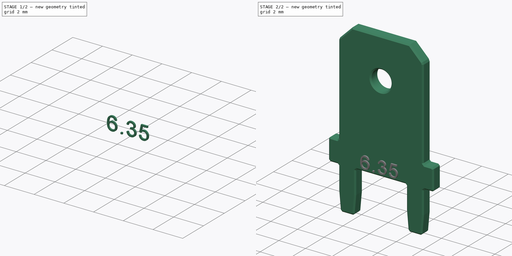
[diagram: build sequence overview — one tinted view per stage of 2, left to right]
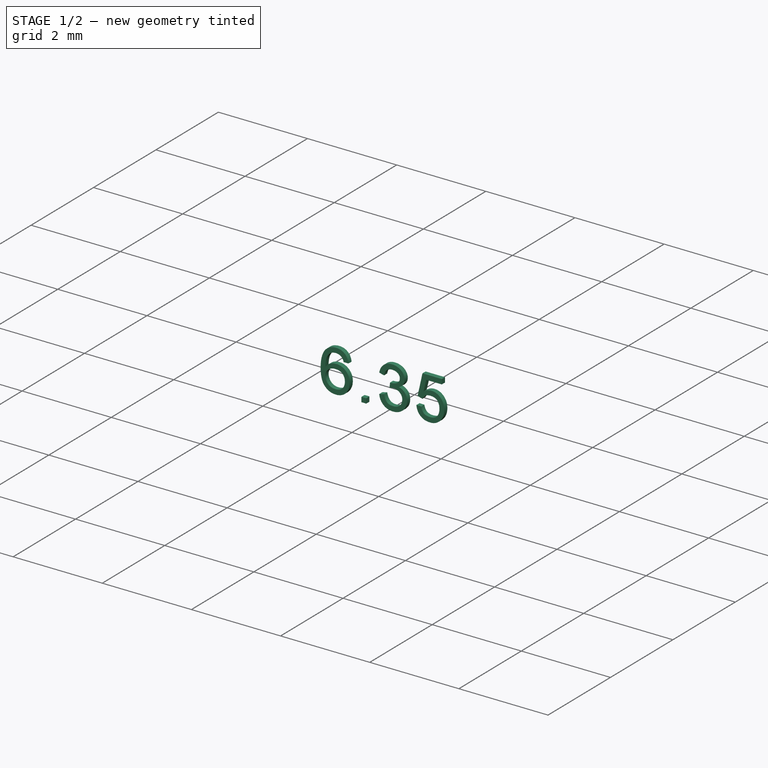
[diagram: stage 1 of 2 — iso view after this stage's code; geometry added in this stage tinted green]
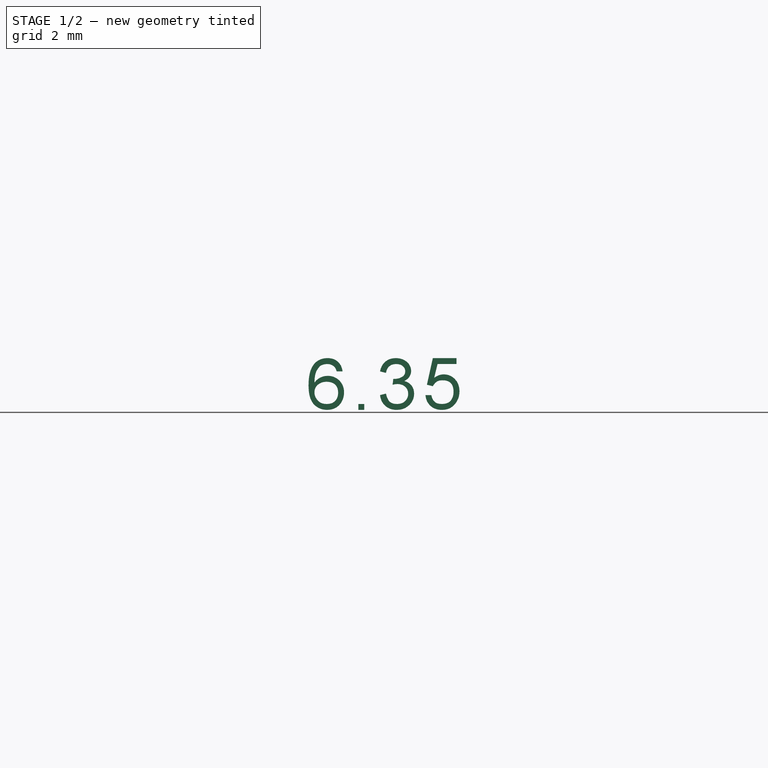
[diagram: stage 1 of 2 — front view after this stage's code; geometry added in this stage tinted green]
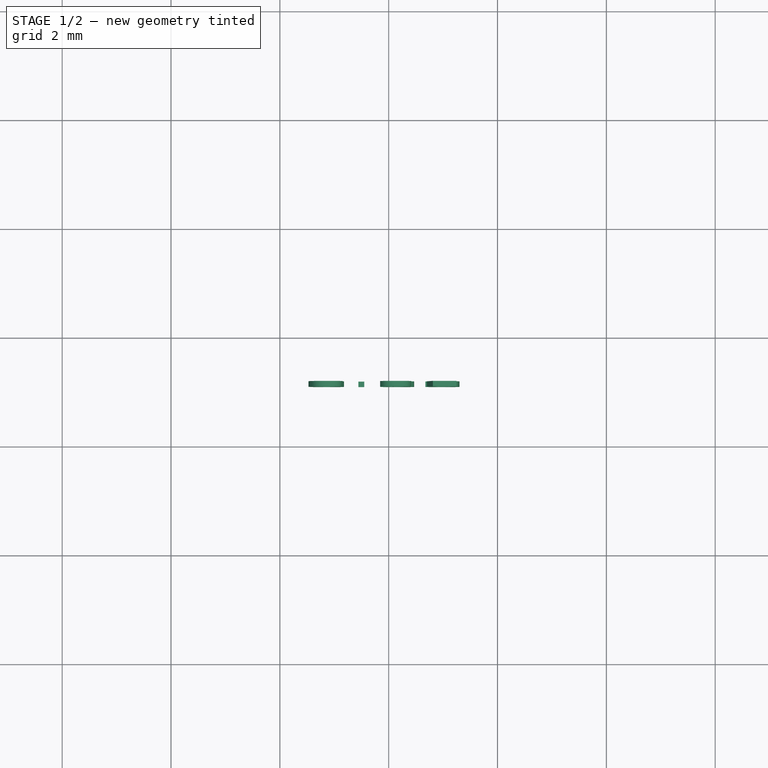
[diagram: stage 1 of 2 — top view after this stage's code; geometry added in this stage tinted green]
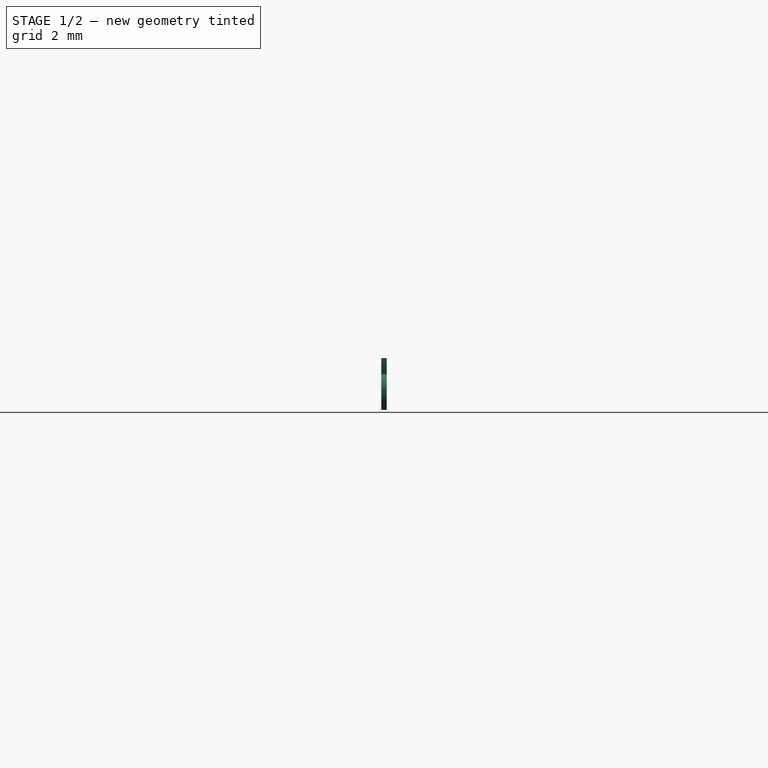
[diagram: stage 1 of 2 — right view after this stage's code; geometry added in this stage tinted green]
FCSTD DOCUMENT  (FreeCAD 0.20R29177 (Git))
Label: Faston6.35
License: All rights reserved
LicenseURL: http://en.wikipedia.org/wiki/All_rights_reserved
objects: PartDesign::Body×1, Sketcher::SketchObject×1, PartDesign::Pad×1, Part::Part2DObjectPython×1, PartDesign::Chamfer×1, Part::Extrusion×1, App::Part×1
note: 8 computed .brp shape members not serialized (recipe doc carries the construction recipe); baked Part::Feature solids carry a one-line shape summary decoded from their .brp

FEATURE [PartDesign::Body] Body  label="Faston"
  Origin = -> Origin
FEATURE [Sketcher::SketchObject] Sketch
  FullyConstrained = true
  MapMode = 5
  Placement = pos=(0,0,0) rot=(1,0,0;1.5708rad)
  Support = -> [XZ_Plane]
  sketch-geometry (39):
    g0: LineSegment StartX=-3.175 StartY=1.75957 StartZ=0 EndX=-3.28107 EndY=1.65351 EndZ=0
    g1: LineSegment StartX=-3.83107 StartY=1.65351 StartZ=0 EndX=-3.93713 EndY=1.54744 EndZ=0
    g2: LineSegment StartX=-3.93713 StartY=1.54744 StartZ=0 EndX=-3.93713 EndY=0.106066 EndZ=0
    g3: LineSegment StartX=-3.93713 StartY=0.106066 StartZ=0 EndX=-3.83107 EndY=0 EndZ=0
    g4: LineSegment StartX=-3.83107 StartY=0 StartZ=0 EndX=-3.28107 EndY=0 EndZ=0
    g5: LineSegment StartX=-3.28107 StartY=0 StartZ=0 EndX=-3.175 EndY=-0.106066 EndZ=0
    g6: LineSegment StartX=-3.175 StartY=-0.106066 StartZ=0 EndX=-3.175 EndY=-1.77607 EndZ=0
    g7: LineSegment StartX=-3.175 StartY=-1.77607 StartZ=0 EndX=-3.0566 EndY=-3.07066 EndZ=0
    g8: LineSegment StartX=-3.0566 StartY=-3.07066 StartZ=0 EndX=-2.95053 EndY=-3.17673 EndZ=0
    g9: LineSegment StartX=-2.95053 StartY=-3.17673 StartZ=0 EndX=-2.13053 EndY=-3.17673 EndZ=0
    g10: LineSegment StartX=-2.13053 StartY=-3.17673 StartZ=0 EndX=-2.02447 EndY=-3.07066 EndZ=0
    g11: LineSegment StartX=-2.02447 StartY=-3.07066 StartZ=0 EndX=-1.90607 EndY=-1.77607 EndZ=0
    g12: LineSegment StartX=-1.90607 StartY=-1.77607 StartZ=0 EndX=-1.90607 EndY=-0.106066 EndZ=0
    g13: LineSegment StartX=-1.90607 StartY=-0.106066 StartZ=0 EndX=-1.8 EndY=0 EndZ=0
    g14: LineSegment StartX=-1.8 StartY=0 StartZ=0 EndX=1.8 EndY=0 EndZ=0
    g15: LineSegment StartX=1.8 StartY=0 StartZ=0 EndX=1.90607 EndY=-0.106066 EndZ=0
    g16: LineSegment StartX=1.90607 StartY=-0.106066 StartZ=0 EndX=1.90607 EndY=-1.77607 EndZ=0
    g17: LineSegment StartX=1.90607 StartY=-1.77607 StartZ=0 EndX=2.02447 EndY=-3.07066 EndZ=0
    g18: LineSegment StartX=2.02447 StartY=-3.07066 StartZ=0 EndX=2.13053 EndY=-3.17673 EndZ=0
    g19: LineSegment StartX=2.13053 StartY=-3.17673 StartZ=0 EndX=2.95053 EndY=-3.17673 EndZ=0
    g20: LineSegment StartX=2.95053 StartY=-3.17673 StartZ=0 EndX=3.0566 EndY=-3.07066 EndZ=0
    g21: LineSegment StartX=3.0566 StartY=-3.07066 StartZ=0 EndX=3.175 EndY=-1.77607 EndZ=0
    g22: LineSegment StartX=3.175 StartY=-1.77607 StartZ=0 EndX=3.175 EndY=-0.106066 EndZ=0
    g23: LineSegment StartX=3.175 StartY=-0.106066 StartZ=0 EndX=3.28107 EndY=0 EndZ=0
    g24: LineSegment StartX=3.28107 StartY=0 StartZ=0 EndX=3.83107 EndY=0 EndZ=0
    g25: LineSegment StartX=3.83107 StartY=0 StartZ=0 EndX=3.93713 EndY=0.106066 EndZ=0
    g26: LineSegment StartX=3.93713 StartY=0.106066 StartZ=0 EndX=3.93713 EndY=1.54744 EndZ=0
    g27: LineSegment StartX=3.93713 StartY=1.54744 StartZ=0 EndX=3.83107 EndY=1.65351 EndZ=0
    g28: LineSegment StartX=3.83107 StartY=1.65351 StartZ=0 EndX=3.28107 EndY=1.65351 EndZ=0
    g29: LineSegment StartX=3.28107 StartY=1.65351 StartZ=0 EndX=3.175 EndY=1.75957 EndZ=0
    g30: LineSegment StartX=3.175 StartY=1.75957 StartZ=0 EndX=3.175 EndY=8.41957 EndZ=0
    g31: LineSegment StartX=3.175 StartY=8.41957 StartZ=0 EndX=3.10752 EndY=8.58248 EndZ=0
    g32: LineSegment StartX=3.10752 StartY=8.58248 StartZ=0 EndX=2.16 EndY=9.53 EndZ=0
    g33: LineSegment StartX=2.16 StartY=9.53 StartZ=0 EndX=-2.16 EndY=9.53 EndZ=0
    g34: LineSegment StartX=-2.16 StartY=9.53 StartZ=0 EndX=-3.10752 EndY=8.58248 EndZ=0
    g35: LineSegment StartX=-3.10752 StartY=8.58248 StartZ=0 EndX=-3.175 EndY=8.41957 EndZ=0
    g36: LineSegment StartX=-3.175 StartY=8.41957 StartZ=0 EndX=-3.175 EndY=1.75957 EndZ=0
    g37: Circle CenterX=0 CenterY=6.5 CenterZ=0 NormalX=0 NormalY=0 NormalZ=1 AngleXU=0 Radius=0.75
    g38: LineSegment StartX=-3.83107 StartY=1.65351 StartZ=0 EndX=-3.28107 EndY=1.65351 EndZ=0
  constraints (115):
    c: Coincident(g2,g1)
    c: Vertical(g2)
    c: Coincident(g3,g2)
    c: Coincident(g4,g3)
    c: PointOnObject(g4,g-1)
    c: Horizontal(g4)
    c: Coincident(g5,g4)
    c: Coincident(g6,g5)
    c: Vertical(g6)
    c: Coincident(g7,g6)
    c: Coincident(g8,g7)
    c: Coincident(g9,g8)
    c: Horizontal(g9)
    c: Coincident(g10,g9)
    c: Coincident(g11,g10)
    c: Coincident(g12,g11)
    c: Vertical(g12)
    c: Coincident(g13,g12)
    c: PointOnObject(g13,g-1)
    c: Coincident(g14,g13)
    c: Coincident(g15,g14)
    c: Coincident(g16,g15)
    c: Vertical(g16)
    c: Coincident(g17,g16)
    c: Coincident(g18,g17)
    c: Coincident(g19,g18)
    c: Horizontal(g19)
    c: Coincident(g20,g19)
    c: Coincident(g21,g20)
    c: Coincident(g22,g21)
    c: Vertical(g22)
    c: PointOnObject(g23,g-1)
    c: Coincident(g24,g23)
    c: PointOnObject(g24,g-1)
    c: Coincident(g25,g24)
    c: Coincident(g26,g25)
    c: Vertical(g26)
    c: Coincident(g27,g26)
    c: Coincident(g28,g27)
    c: Horizontal(g28)
    c: Coincident(g29,g28)
    c: Coincident(g30,g29)
    c: Vertical(g30)
    c: Coincident(g31,g30)
    c: Coincident(g32,g31)
    c: Coincident(g33,g32)
    c: Coincident(g34,g33)
    c: Coincident(g35,g34)
    c: Coincident(g36,g35)
    c: Coincident(g36,g0)
    c: Vertical(g36)
    c: PointOnObject(g37,g-2)
    c: Radius(g37) = 0.75
    c: DistanceY(g37) = 6.5
    c: DistanceX(g33,g32) = 4.32
    c: Symmetric(g33,g32,g-2)
    c: Equal(g34,g32)
    c: Angle(g34) = -2.35619
    c: Angle(g32) = 2.35619
    c: Equal(g35,g31)
    c: Angle(g35) = -1.9635
    c: Angle(g31) = 1.9635
    c: DistanceX(g35,g30) = 6.35
    c: DistanceY(g33) = 9.53
    c: Distance(g34) = 1.34
    c: Equal(g36,g30)
    c: Distance(g36) = 6.66
    c: Equal(g0,g29)
    c: Coincident(g38,g1)
    c: Coincident(g38,g0)
    c: Horizontal(g38)
    c: Angle(g0) = -2.35619
    c: Angle(g29) = 2.35619
    c: Distance(g0) = 0.15
    c: Equal(g38,g28)
    c: Distance(g38) = 0.55
    c: Angle(g1) = -2.35619
    c: Angle(g27) = 2.35619
    c: Distance(g27) = 0.15
    c: Equal(g1,g27)
    c: Equal(g1,g3)
    c: Equal(g5,g1)
    c: Equal(g1,g13)
    c: Equal(g27,g15)
    c: Equal(g27,g25)
    c: Equal(g27,g23)
    c: Parallel(g1,g13)
    c: Parallel(g13,g23)
    c: Parallel(g23,g25)
    c: Parallel(g29,g15)
    c: Parallel(g15,g5)
    c: Parallel(g5,g3)
    c: Equal(g4,g24)
    c: Distance(g4) = 0.55
    c: DistanceX(g14,g14) = 3.6
    c: Symmetric(g13,g14,g-2)
    c: Equal(g6,g12)
    c: Equal(g12,g16)
    c: Equal(g16,g22)
    c: Equal(g7,g11)
    c: Equal(g11,g17)
    c: Equal(g17,g21)
    c: Equal(g9,g19)
    c: Equal(g8,g10)
    c: Equal(g10,g18)
    c: Equal(g18,g20)
    c: Distance(g12) = 1.67
    c: Coincident(g22,g23)
    c: Angle(g8) = -0.785398
    c: Parallel(g8,g18)
    c: Angle(g10) = 0.785398
    c: Parallel(g10,g20)
    c: Distance(g11) = 1.3
    c: Distance(g10) = 0.15
    c: Distance(g9) = 0.82
FEATURE [PartDesign::Pad] Pad
  Direction = (0,-1,2e-16)
  Length = 0.8
  Length2 = 10
  Placement = pos=(0,0,0) rot=(1,0,0;1.5708rad)
  Profile = -> Sketch
  ReferenceAxis = -> Sketch [N_Axis]
  Type = 0
FEATURE [Part::Extrusion] Extrude
  Base = -> ShapeString
  Dir = (0,-1,2e-16)
  DirMode = 2
  FaceMakerClass = Part::FaceMakerBullseye
  LengthFwd = 0.1
  LengthRev = 0
  Placement = pos=(-1.5,-0.8,0.2) rot=(0,0,1;0rad)
  Solid = false
  Symmetric = false
FEATURE [App::Part] Part  label="Faston6.35"
  Group = -> [Pad,Sketch,ShapeString,Chamfer,Extrude,Body]
  Origin = -> Origin001
note: 1 file-system path scrubbed to <path> (originals preserved in the JSON sidecar)
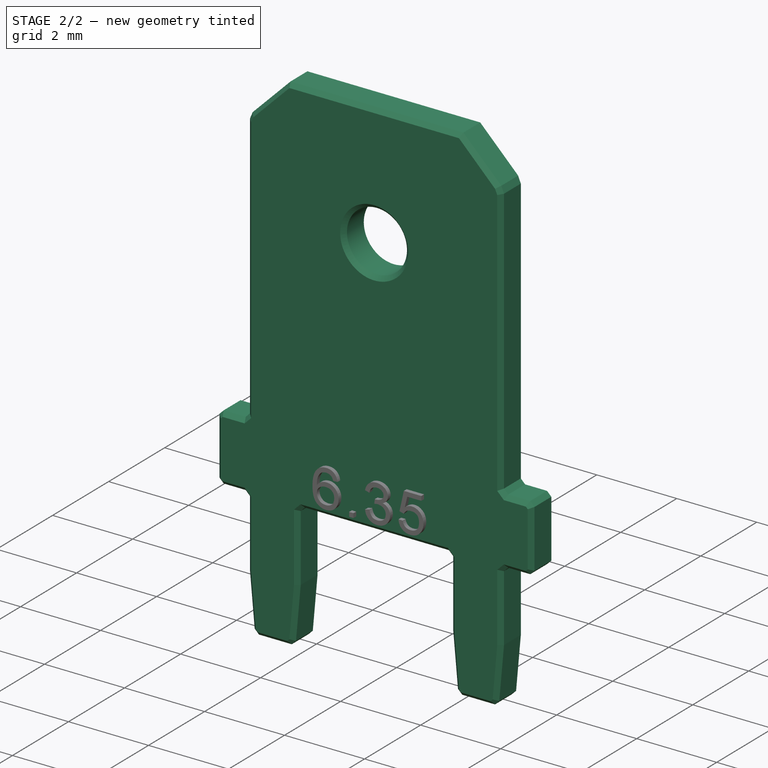
[diagram: stage 2 of 2 — iso view after this stage's code; geometry added in this stage tinted green]
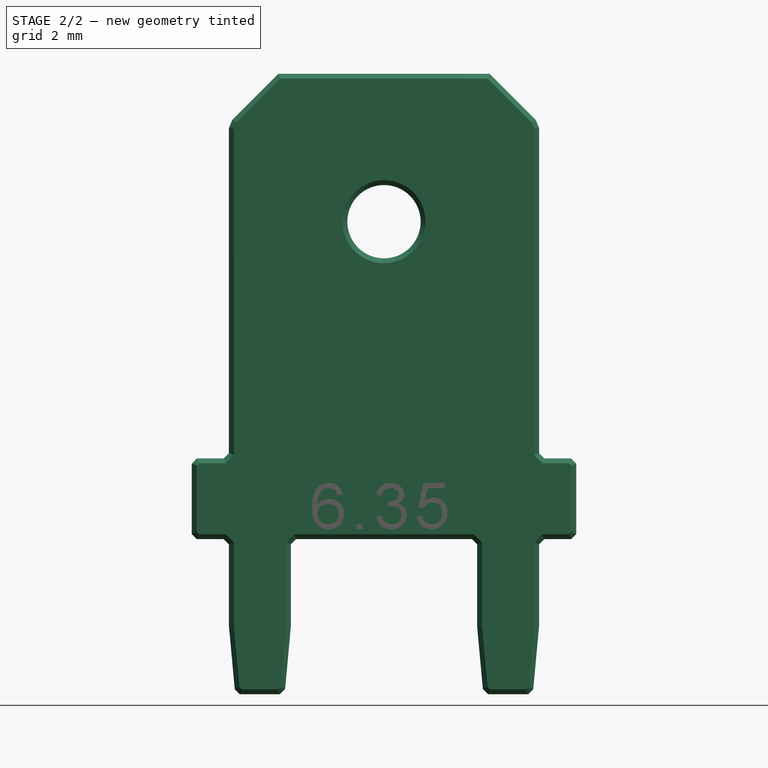
[diagram: stage 2 of 2 — front view after this stage's code; geometry added in this stage tinted green]
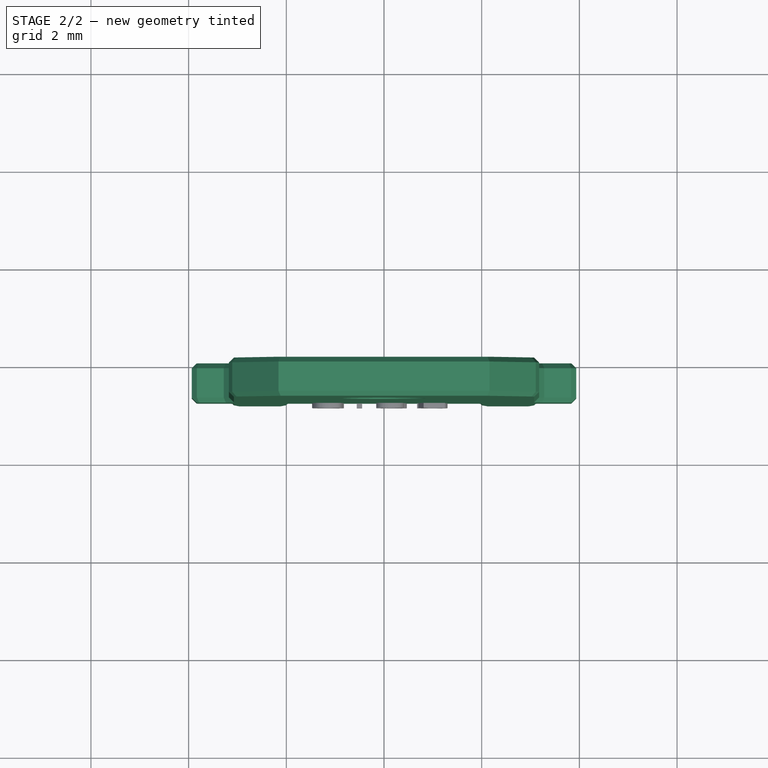
[diagram: stage 2 of 2 — top view after this stage's code; geometry added in this stage tinted green]
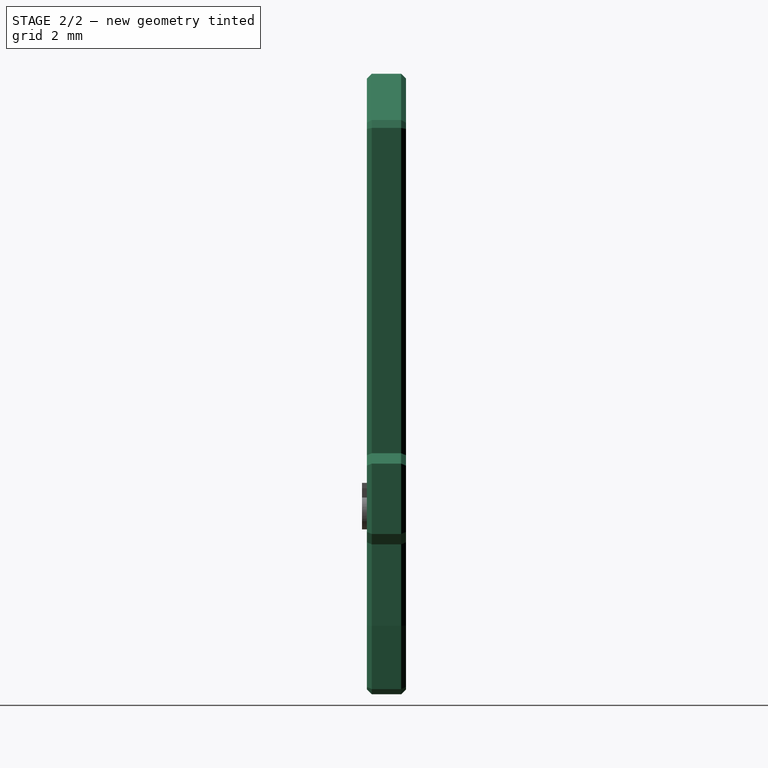
[diagram: stage 2 of 2 — right view after this stage's code; geometry added in this stage tinted green]
FEATURE [Part::Part2DObjectPython] ShapeString  # Draft 2D object (typed FeaturePython)
  FontFile = <path>
  MakeFace = true
  MapMode = 2
  Placement = pos=(0,0,0) rot=(1,0,0;1.5708rad)
  Size = 1
  String = 6.35
  Support = -> [Pad]
  Tracking = 0.1
FEATURE [PartDesign::Chamfer] Chamfer
  Angle = 45
  Base = -> Pad [Face41,Face40]
  ChamferType = 0
  FlipDirection = false
  Placement = pos=(0,0,0) rot=(1,0,0;1.5708rad)
  Size = 0.1
  Size2 = 1
  SupportTransform = false
  UseAllEdges = false
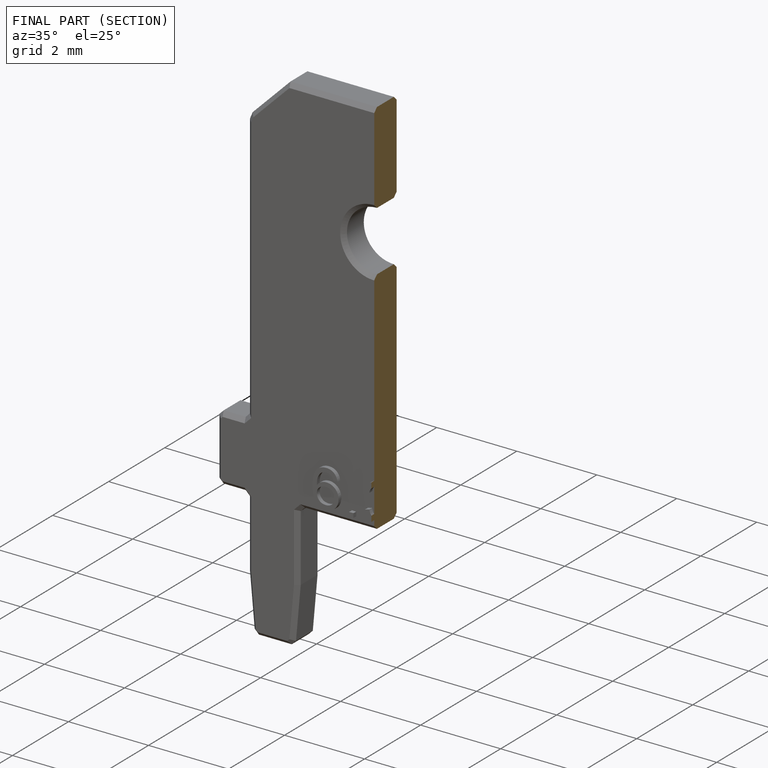
[diagram: finished part — half-section view (interior)]
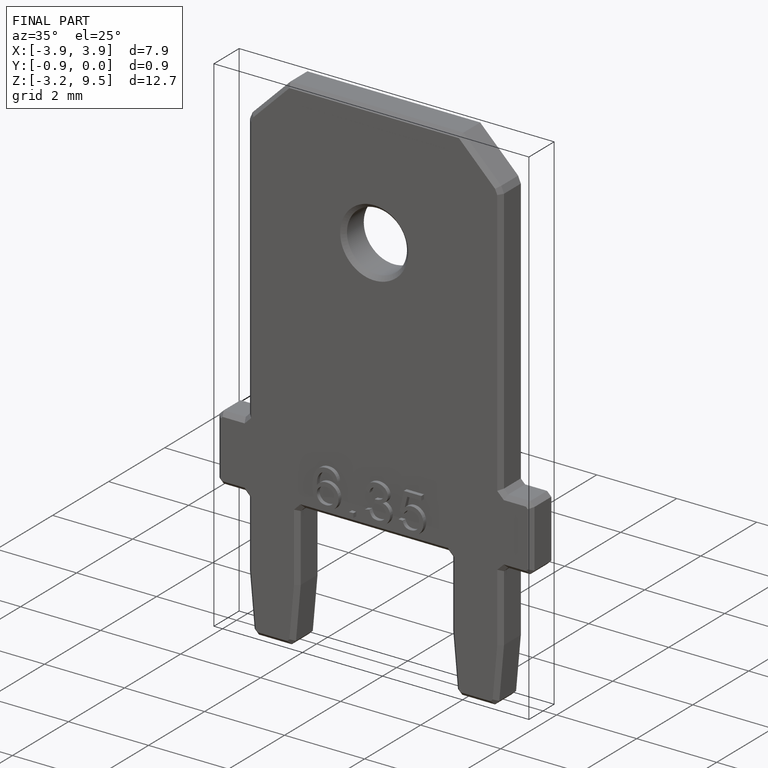
[diagram: finished part — iso view with bounding-box wireframe]
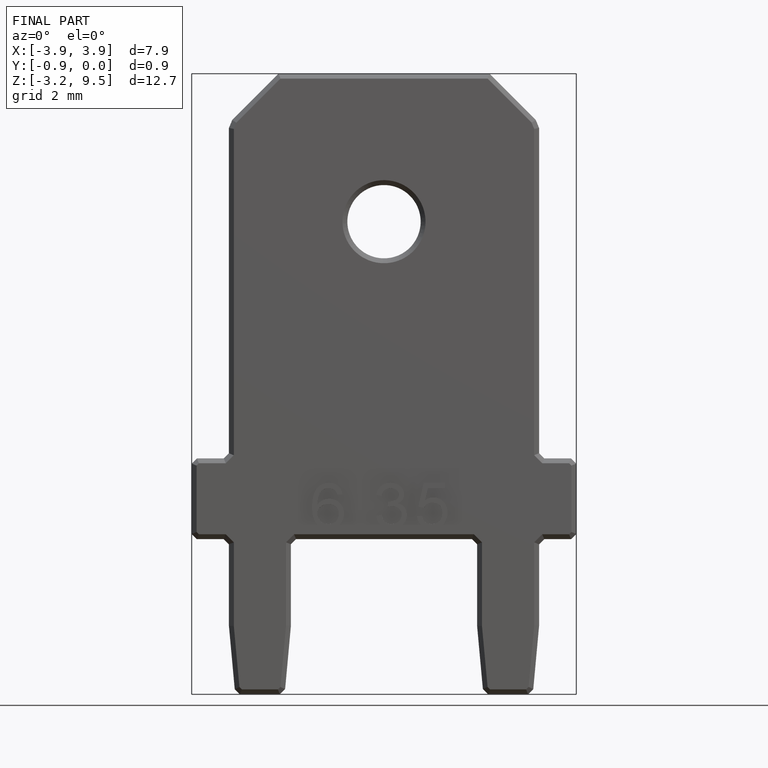
[diagram: finished part — front view with bounding-box wireframe]
